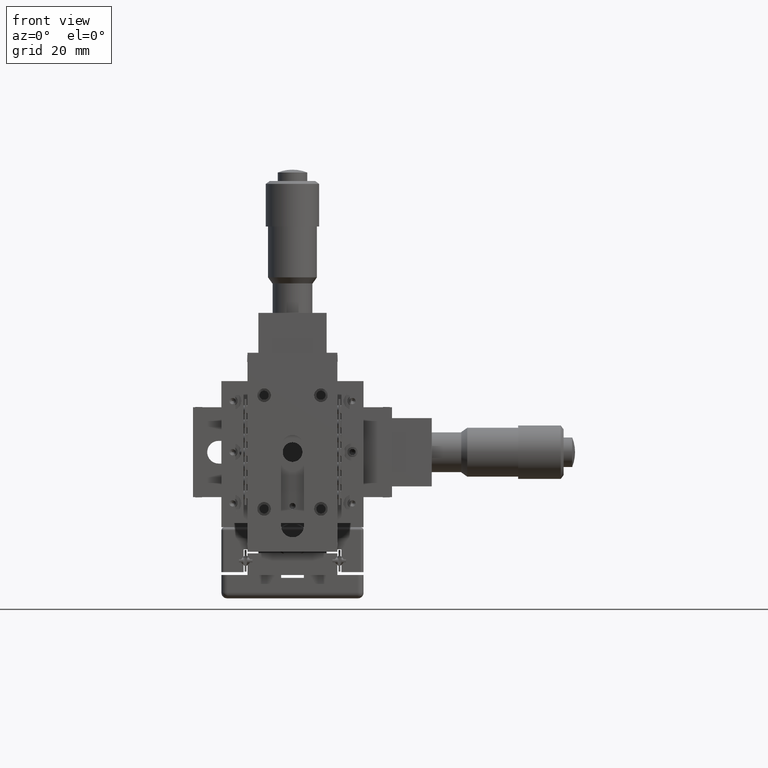
[diagram: clean part render]
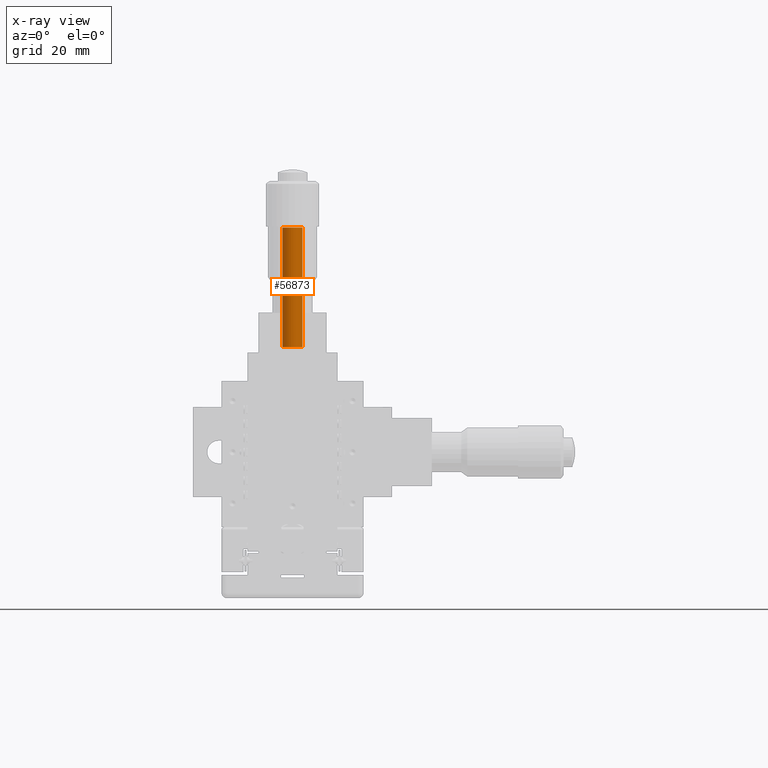
[diagram: x-ray — body ghosted, one internal face saturated and labeled with its STEP entity id]
A machine part, front view, then the same camera in x-ray: the body is ghosted and one INTERNAL B-rep face — a face not visible from any outside direction — is saturated and labeled: STEP entity #56873.
In plain terms, the highlighted cylindrical surface (edge-blend (fillet) strip) has radius 1.75 mm, axis along (-0, 0, -1).
Its self-contained STEP definition (entity closure, byte-faithful):
#3085 = ORIENTED_EDGE ( 'NONE', *, *, #79261, .F. ) ;
#5823 = FACE_OUTER_BOUND ( 'NONE', #52113, .T. ) ;
#11007 = LINE ( 'NONE', #26067, #49226 ) ;
#11763 = CARTESIAN_POINT ( 'NONE',  ( 1.749251930026284800, 6.148836680137354600, 39.50000000000001400 ) ) ;
#15698 = AXIS2_PLACEMENT_3D ( 'NONE', #90512, #99237, #32485 ) ;
#18240 = VERTEX_POINT ( 'NONE', #67342 ) ;
#19758 = DIRECTION ( 'NONE',  ( -1.110223024626042300E-016, 9.894834894112741100E-016, -1.000000000000000000 ) ) ;
#25863 = AXIS2_PLACEMENT_3D ( 'NONE', #33473, #86474, #103948 ) ;
#26067 = CARTESIAN_POINT ( 'NONE',  ( -1.749251930026274800, 6.251163319862413900, 39.50000000000001400 ) ) ;
#32485 = DIRECTION ( 'NONE',  ( -0.9995725314435851500, 0.02923618277858824200, 0.0000000000000000000 ) ) ;
#32666 = EDGE_CURVE ( 'NONE', #18240, #108247, #40551, .T. ) ;
#33473 = CARTESIAN_POINT ( 'NONE',  ( 4.980844151914749200E-015, 6.199999999999884700, 39.50000000000001400 ) ) ;
#34486 = VERTEX_POINT ( 'NONE', #91998 ) ;
#35198 = DIRECTION ( 'NONE',  ( -0.9995725314435851500, 0.02923618277858824200, 0.0000000000000000000 ) ) ;
#38007 = VERTEX_POINT ( 'NONE', #85287 ) ;
#40551 = LINE ( 'NONE', #11763, #100560 ) ;
#42169 = ORIENTED_EDGE ( 'NONE', *, *, #43124, .T. ) ;
#43124 = EDGE_CURVE ( 'NONE', #108247, #38007, #98639, .T. ) ;
#43379 = ORIENTED_EDGE ( 'NONE', *, *, #32666, .T. ) ;
#49226 = VECTOR ( 'NONE', #52766, 1000.000000000000000 ) ;
#52037 = CARTESIAN_POINT ( 'NONE',  ( 1.749251930026275900, 6.148836680137365300, 18.50000000000000400 ) ) ;
#52113 = EDGE_LOOP ( 'NONE', ( #108058, #43379, #42169, #3085 ) ) ;
#52766 = DIRECTION ( 'NONE',  ( -1.110223024626042300E-016, 9.894834894112741100E-016, -1.000000000000000000 ) ) ;
#56873 = ADVANCED_FACE ( 'NONE', ( #5823 ), #76741, .F. ) ;
#67342 = CARTESIAN_POINT ( 'NONE',  ( 1.749251930026279400, 6.148836680137365300, 39.50000000000001400 ) ) ;
#76741 = CYLINDRICAL_SURFACE ( 'NONE', #15698, 1.750000000000005800 ) ;
#78566 = CARTESIAN_POINT ( 'NONE',  ( 2.276824562219559300E-015, 6.199999999999905100, 18.50000000000000400 ) ) ;
#79261 = EDGE_CURVE ( 'NONE', #34486, #38007, #11007, .T. ) ;
#83433 = EDGE_CURVE ( 'NONE', #18240, #34486, #99183, .T. ) ;
#85287 = CARTESIAN_POINT ( 'NONE',  ( -1.749251930026277700, 6.251163319862435200, 18.50000000000000400 ) ) ;
#86474 = DIRECTION ( 'NONE',  ( -1.110223024626042000E-016, 9.894834894112739200E-016, -1.000000000000000000 ) ) ;
#87414 = DIRECTION ( 'NONE',  ( -1.110223024626042000E-016, 9.894834894112739200E-016, -1.000000000000000000 ) ) ;
#90512 = CARTESIAN_POINT ( 'NONE',  ( 4.980844151914749200E-015, 6.199999999999884700, 39.50000000000001400 ) ) ;
#91998 = CARTESIAN_POINT ( 'NONE',  ( -1.749251930026274800, 6.251163319862413900, 39.50000000000001400 ) ) ;
#95610 = AXIS2_PLACEMENT_3D ( 'NONE', #78566, #87414, #35198 ) ;
#98639 = CIRCLE ( 'NONE', #95610, 1.750000000000005800 ) ;
#99183 = CIRCLE ( 'NONE', #25863, 1.750000000000005800 ) ;
#99237 = DIRECTION ( 'NONE',  ( -1.110223024626042300E-016, 9.894834894112741100E-016, -1.000000000000000000 ) ) ;
#100560 = VECTOR ( 'NONE', #19758, 1000.000000000000000 ) ;
#103948 = DIRECTION ( 'NONE',  ( -0.9995725314435851500, 0.02923618277858824200, 0.0000000000000000000 ) ) ;
#108058 = ORIENTED_EDGE ( 'NONE', *, *, #83433, .F. ) ;
#108247 = VERTEX_POINT ( 'NONE', #52037 ) ;